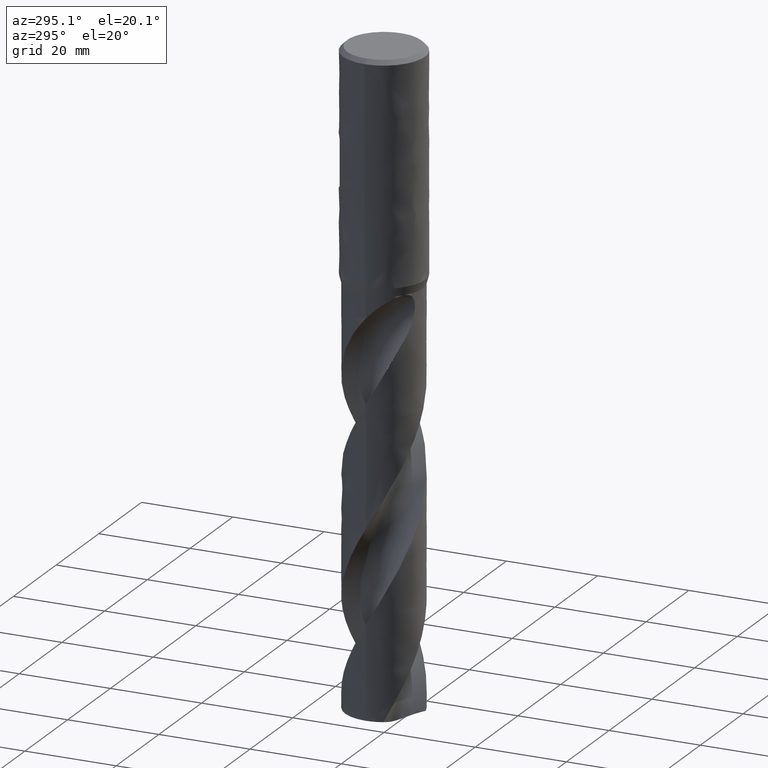
[diagram: clean part render]
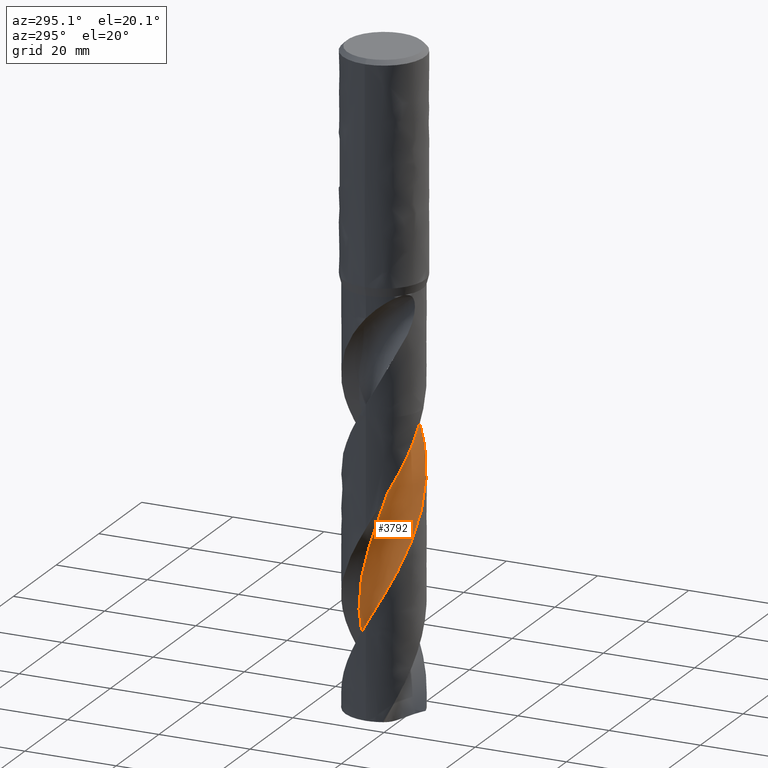
[diagram: same view with one face highlighted and labeled with its STEP entity id]
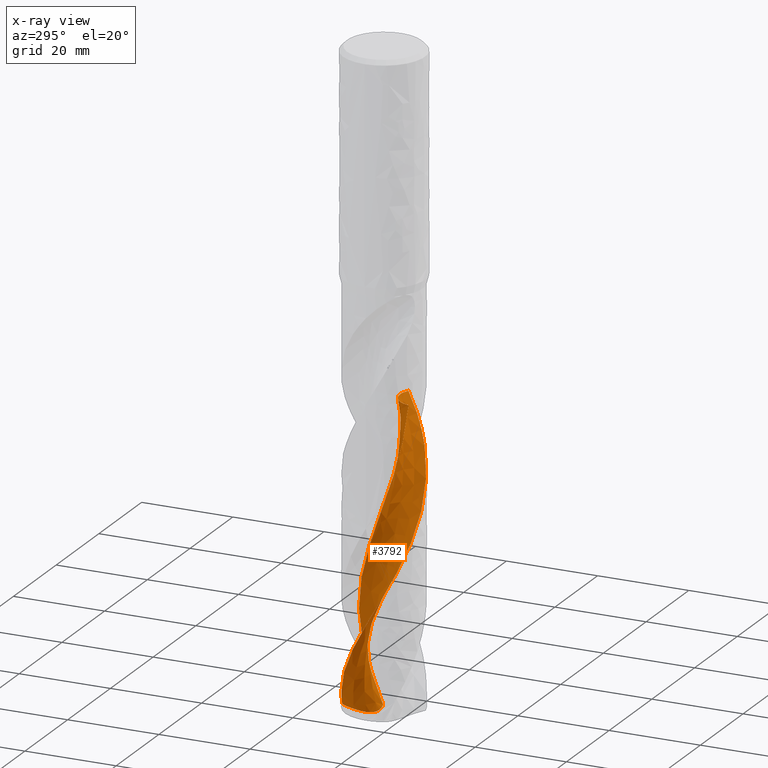
[diagram: x-ray of the same camera — body ghosted, the highlighted face saturated]
A machine part, auxiliary view. The second image highlights one B-rep face of the part: STEP entity #3792.
The next image is the same camera in x-ray: the body ghosted, the highlighted face saturated — about 0% of this face is hidden behind the body in this view.
In plain terms, the highlighted face is a freeform B-spline surface patch.
Its self-contained STEP definition (entity closure, byte-faithful):
#2079 = VERTEX_POINT('', #2080);
#2080 = CARTESIAN_POINT('', (0.872850552321032, -5.01350328899463, -75.5));
#2086 = EDGE_CURVE('', #2079, #2087, #2089, .T.);
#2087 = VERTEX_POINT('', #2088);
#2088 = CARTESIAN_POINT('', (8.38002394028895, -1.42309478257214, -75.5));
#2089 = B_SPLINE_CURVE_WITH_KNOTS('', 3, (#2090, #2091, #2092, #2093, #2094, #2095, #2096, #2097, #2098, #2099, #2100, #2101, #2102, #2103, #2104, #2105, #2106, #2107, #2108, #2109, #2110, #2111, #2112, #2113, #2114, #2115, #2116, #2117, #2118, #2119, #2120, #2121, #2122, #2123, #2124, #2125, #2126, #2127, #2128, #2129, #2130, #2131, #2132, #2133, #2134, #2135, #2136, #2137, #2138, #2139, #2140, #2141, #2142, #2143, #2144, #2145, #2146, #2147, #2148, #2149, #2150, #2151, #2152, #2153, #2154, #2155, #2156, #2157, #2158, #2159), .UNSPECIFIED., .F., .U., (4, 3, 3, 3, 3, 3, 3, 3, 3, 3, 3, 3, 3, 3, 3, 3, 3, 3, 3, 3, 3, 3, 3, 4), (0., 0.445744900889594, 0.891040488506036, 1.33589669995762, 1.78032151113903, 2.2243210726991, 2.66789981311372, 3.11106051258181, 3.55380435036379, 3.99613092724309, 4.43803826395497, 4.87952277564306, 4.9184426101405, 5.36416289379438, 5.80943445514963, 6.25426712103822, 6.69866876536011, 7.14264544315397, 7.58620149200566, 8.0293396044483, 8.47206087391858, 8.91436481590264, 9.35624936507221, 9.72942490357285), .UNSPECIFIED.);
#2090 = CARTESIAN_POINT('', (0.872850552321035, -5.01350328899463, -75.5));
#2091 = CARTESIAN_POINT('', (0.898069629858211, -4.8670775399602, -75.5));
#2092 = CARTESIAN_POINT('', (0.929723618012922, -4.72161633555014, -75.5));
#2093 = CARTESIAN_POINT('', (0.967631437455532, -4.57795179894759, -75.5));
#2094 = CARTESIAN_POINT('', (1.00550104561093, -4.43443207697567, -75.5));
#2095 = CARTESIAN_POINT('', (1.04968396228272, -4.29243213816947, -75.5));
#2096 = CARTESIAN_POINT('', (1.09992794390837, -4.1527626707575, -75.5));
#2097 = CARTESIAN_POINT('', (1.15012234945788, -4.01323101615268, -75.5));
#2098 = CARTESIAN_POINT('', (1.20646122163639, -3.87576008925084, -75.5));
#2099 = CARTESIAN_POINT('', (1.26862355114358, -3.74113317598507, -75.5));
#2100 = CARTESIAN_POINT('', (1.33072559859769, -3.6066368174587, -75.5));
#2101 = CARTESIAN_POINT('', (1.39875756979384, -3.4747238755258, -75.5));
#2102 = CARTESIAN_POINT('', (1.47233258053097, -3.34614451267982, -75.5));
#2103 = CARTESIAN_POINT('', (1.54583719073089, -3.2176881815008, -75.5));
#2104 = CARTESIAN_POINT('', (1.62501335256773, -3.09231588944955, -75.5));
#2105 = CARTESIAN_POINT('', (1.70941166708936, -2.97073924182953, -75.5));
#2106 = CARTESIAN_POINT('', (1.79372998920004, -2.84927782410734, -75.5));
#2107 = CARTESIAN_POINT('', (1.88341985205792, -2.73137537070068, -75.5));
#2108 = CARTESIAN_POINT('', (1.97797314477427, -2.6176998224278, -75.5));
#2109 = CARTESIAN_POINT('', (2.07243732783684, -2.50413140515436, -75.5));
#2110 = CARTESIAN_POINT('', (2.17193389424546, -2.39456775603755, -75.5));
#2111 = CARTESIAN_POINT('', (2.27590023661895, -2.28962840718713, -75.5));
#2112 = CARTESIAN_POINT('', (2.37976878244859, -2.18478777014475, -75.5));
#2113 = CARTESIAN_POINT('', (2.48829418270865, -2.08436539232053, -75.5));
#2114 = CARTESIAN_POINT('', (2.6008639284272, -1.98892804985399, -75.5));
#2115 = CARTESIAN_POINT('', (2.71332758355858, -1.89358065165831, -75.5));
#2116 = CARTESIAN_POINT('', (2.83003922916998, -1.80302975581234, -75.5));
#2117 = CARTESIAN_POINT('', (2.95034139301739, -1.71778546308945, -75.5));
#2118 = CARTESIAN_POINT('', (3.07052953364769, -1.63262196549266, -75.5));
#2119 = CARTESIAN_POINT('', (3.19452674055901, -1.55259530827691, -75.5));
#2120 = CARTESIAN_POINT('', (3.32163582134724, -1.47815545300931, -75.5));
#2121 = CARTESIAN_POINT('', (3.44862328184169, -1.403786823157, -75.5));
#2122 = CARTESIAN_POINT('', (3.57895431235261, -1.33485510696751, -75.5));
#2123 = CARTESIAN_POINT('', (3.71189750731392, -1.27174714279167, -75.5));
#2124 = CARTESIAN_POINT('', (3.72361734574194, -1.26618375051817, -75.5));
#2125 = CARTESIAN_POINT('', (3.7353584970808, -1.26066503579943, -75.5));
#2126 = CARTESIAN_POINT('', (3.74712044854346, -1.25519123966168, -75.5));
#2127 = CARTESIAN_POINT('', (3.88182144123665, -1.19250387218739, -75.5));
#2128 = CARTESIAN_POINT('', (4.01939529662581, -1.13565394496767, -75.5));
#2129 = CARTESIAN_POINT('', (4.15905509857951, -1.08496663697403, -75.5));
#2130 = CARTESIAN_POINT('', (4.29857430009464, -1.0343303576775, -75.5));
#2131 = CARTESIAN_POINT('', (4.44044085410922, -0.989747872403969, -75.5));
#2132 = CARTESIAN_POINT('', (4.58384492117184, -0.951473678456662, -75.5));
#2133 = CARTESIAN_POINT('', (4.72710763765113, -0.913237210633526, -75.5));
#2134 = CARTESIAN_POINT('', (4.87217703101989, -0.881223931458957, -75.5));
#2135 = CARTESIAN_POINT('', (5.0182266079494, -0.855616227865535, -75.5));
#2136 = CARTESIAN_POINT('', (5.16413466982776, -0.830033336911491, -75.5));
#2137 = CARTESIAN_POINT('', (5.31129769982746, -0.810795077570687, -75.5));
#2138 = CARTESIAN_POINT('', (5.45887889838085, -0.798010842583263, -75.5));
#2139 = CARTESIAN_POINT('', (5.60631896993717, -0.785238832735024, -75.5));
#2140 = CARTESIAN_POINT('', (5.75445546559087, -0.778884312963161, -75.5));
#2141 = CARTESIAN_POINT('', (5.90244765838588, -0.778983347412716, -75.5));
#2142 = CARTESIAN_POINT('', (6.05029964156489, -0.77908228803582, -75.5));
#2143 = CARTESIAN_POINT('', (6.19828690128855, -0.785622724138457, -75.5));
#2144 = CARTESIAN_POINT('', (6.34557114598678, -0.798567606636392, -75.5));
#2145 = CARTESIAN_POINT('', (6.49271661352596, -0.811500291943643, -75.5));
#2146 = CARTESIAN_POINT('', (6.63943784009502, -0.830849722511652, -75.5));
#2147 = CARTESIAN_POINT('', (6.784905269, -0.856506497335366, -75.5));
#2148 = CARTESIAN_POINT('', (6.93023586229157, -0.882139137818164, -75.5));
#2149 = CARTESIAN_POINT('', (7.07458853063715, -0.914115480013868, -75.5));
#2150 = CARTESIAN_POINT('', (7.21714864167149, -0.952255070290592, -75.5));
#2151 = CARTESIAN_POINT('', (7.35957436961452, -0.990358708602878, -75.5));
#2152 = CARTESIAN_POINT('', (7.50047846402352, -1.03468553495104, -75.5));
#2153 = CARTESIAN_POINT('', (7.63906725034292, -1.08498586834213, -75.5));
#2154 = CARTESIAN_POINT('', (7.77752462670722, -1.13523850693246, -75.5));
#2155 = CARTESIAN_POINT('', (7.91393068550295, -1.19154752717377, -75.5));
#2156 = CARTESIAN_POINT('', (8.04751854272988, -1.25359635598218, -75.5));
#2157 = CARTESIAN_POINT('', (8.16033470851683, -1.30599715874259, -75.5));
#2158 = CARTESIAN_POINT('', (8.27134178443179, -1.36258428438345, -75.5));
#2159 = CARTESIAN_POINT('', (8.38002394028895, -1.42309478257214, -75.5));
#3593 = EDGE_CURVE('', #2087, #3594, #3596, .T.);
#3594 = VERTEX_POINT('', #3595);
#3595 = CARTESIAN_POINT('', (7.66228628523739, -3.67958814041233, -79.6218993822655));
#3596 = B_SPLINE_CURVE_WITH_KNOTS('', 3, (#3597, #3598, #3599, #3600, #3601, #3602, #3603, #3604, #3605, #3606, #3607, #3608, #3609, #3610, #3611, #3612, #3613, #3614, #3615), .UNSPECIFIED., .F., .U., (4, 3, 3, 3, 3, 3, 4), (10.2474994781111, 10.5613982733317, 11.5600384179919, 12.5585649459374, 13.5569745466058, 14.5552683817902, 15.0048238503907), .UNSPECIFIED.);
#3597 = CARTESIAN_POINT('', (8.38002394028895, -1.42309478257214, -75.5));
#3598 = CARTESIAN_POINT('', (8.37127325206065, -1.47462401150701, -75.5906433363544));
#3599 = CARTESIAN_POINT('', (8.36204691657744, -1.52607428736887, -75.6812953141512));
#3600 = CARTESIAN_POINT('', (8.35234805435497, -1.57742891405998, -75.7719412450778));
#3601 = CARTESIAN_POINT('', (8.32149201629314, -1.7408089352918, -76.0603229367304));
#3602 = CARTESIAN_POINT('', (8.28584113308772, -1.90327921638246, -76.3487482090748));
#3603 = CARTESIAN_POINT('', (8.2454641020793, -2.06453911111448, -76.6371473564746));
#3604 = CARTESIAN_POINT('', (8.20509166482333, -2.2257806590781, -76.9255136922918));
#3605 = CARTESIAN_POINT('', (8.15998435005145, -2.3858499380623, -77.2139137883939));
#3606 = CARTESIAN_POINT('', (8.11023129323462, -2.544434784041, -77.5022874939838));
#3607 = CARTESIAN_POINT('', (8.0604840624918, -2.7030010597627, -77.7906274310644));
#3608 = CARTESIAN_POINT('', (8.00608178647481, -2.86011634898766, -78.0790033182412));
#3609 = CARTESIAN_POINT('', (7.94713249805512, -3.01547426756655, -78.3673553055903));
#3610 = CARTESIAN_POINT('', (7.88819004479897, -3.1708141724118, -78.655673858558));
#3611 = CARTESIAN_POINT('', (7.8246890375392, -3.32443047425926, -78.944030228667));
#3612 = CARTESIAN_POINT('', (7.75675439880873, -3.47602663921917, -79.2323629781919));
#3613 = CARTESIAN_POINT('', (7.72616181446903, -3.54429399956403, -79.3622060762429));
#3614 = CARTESIAN_POINT('', (7.69466829074476, -3.61215662709632, -79.4920534522267));
#3615 = CARTESIAN_POINT('', (7.66228628523731, -3.67958814041248, -79.6218993822658));
#3792 = ADVANCED_FACE('', (#3793), #4038, .T.);
#3793 = FACE_OUTER_BOUND('', #3794, .T.);
#3794 = EDGE_LOOP('', (#3795, #3796, #3846, #3978, #3993, #4037));
#3795 = ORIENTED_EDGE('', *, *, #2086, .F.);
#3796 = ORIENTED_EDGE('', *, *, #3797, .F.);
#3797 = EDGE_CURVE('', #3798, #2079, #3800, .T.);
#3798 = VERTEX_POINT('', #3799);
#3799 = CARTESIAN_POINT('', (4.53570684960779, 2.30879701014691, -141.147567413682));
#3800 = B_SPLINE_CURVE_WITH_KNOTS('', 3, (#3801, #3802, #3803, #3804, #3805, #3806, #3807, #3808, #3809, #3810, #3811, #3812, #3813, #3814, #3815, #3816, #3817, #3818, #3819, #3820, #3821, #3822, #3823, #3824, #3825, #3826, #3827, #3828, #3829, #3830, #3831, #3832, #3833, #3834, #3835, #3836, #3837, #3838, #3839, #3840, #3841, #3842, #3843, #3844, #3845), .UNSPECIFIED., .F., .U., (4, 1, 1, 1, 1, 1, 1, 1, 1, 1, 1, 1, 1, 1, 1, 1, 1, 1, 1, 1, 1, 1, 1, 1, 1, 1, 1, 1, 1, 1, 1, 1, 1, 1, 1, 1, 1, 1, 1, 1, 1, 1, 4), (1.90243258631817, 3.15491525423729, 4.73237288135593, 6.30983050847458, 7.88728813559322, 9.46474576271186, 11.0422033898305, 12.6196610169492, 14.1971186440678, 15.7745762711864, 17.3520338983051, 18.9294915254237, 20.5069491525424, 22.084406779661, 23.6618644067797, 25.2393220338983, 26.8167796610169, 28.3942372881356, 29.9716949152542, 31.5491525423729, 33.1266101694915, 34.7040677966102, 36.2815254237288, 37.8589830508475, 39.4364406779661, 41.0138983050847, 42.5913559322034, 44.168813559322, 45.7462711864407, 47.3237288135593, 48.901186440678, 50.4786440677966, 52.0561016949152, 53.6335593220339, 55.2110169491525, 56.7884745762712, 58.3659322033898, 59.9433898305085, 61.5208474576271, 63.0983050847458, 64.6757627118644, 66.2532203389831, 67.55), .UNSPECIFIED.);
#3801 = CARTESIAN_POINT('', (4.53570684960778, 2.30879701014692, -141.147567413682));
#3802 = CARTESIAN_POINT('', (4.46769455850518, 2.43448795774081, -140.730073191042));
#3803 = CARTESIAN_POINT('', (4.30237233456855, 2.71178721590451, -139.786759759363));
#3804 = CARTESIAN_POINT('', (4.00596020398452, 3.11678888446556, -138.317627118644));
#3805 = CARTESIAN_POINT('', (3.64480641942108, 3.514953969856, -136.740169491525));
#3806 = CARTESIAN_POINT('', (3.24488716198237, 3.87227467584015, -135.162711864407));
#3807 = CARTESIAN_POINT('', (2.81072271988332, 4.18506552300946, -133.585254237288));
#3808 = CARTESIAN_POINT('', (2.34717185167911, 4.45012879469237, -132.00779661017));
#3809 = CARTESIAN_POINT('', (1.85938322845106, 4.66478712323646, -130.430338983051));
#3810 = CARTESIAN_POINT('', (1.35274002243834, 4.82690804329075, -128.852881355932));
#3811 = CARTESIAN_POINT('', (0.832803573453643, 4.93492366122554, -127.275423728814));
#3812 = CARTESIAN_POINT('', (0.30525524990833, 4.98784438623364, -125.697966101695));
#3813 = CARTESIAN_POINT('', (-0.224162538920032, 4.98526686384074, -124.120508474576));
#3814 = CARTESIAN_POINT('', (-0.749705708322296, 4.92737600175594, -122.543050847458));
#3815 = CARTESIAN_POINT('', (-1.26568763918169, 4.81494111468747, -120.965593220339));
#3816 = CARTESIAN_POINT('', (-1.76653753302831, 4.6493062470862, -119.38813559322));
#3817 = CARTESIAN_POINT('', (-2.2468574204104, 4.43237479199793, -117.810677966102));
#3818 = CARTESIAN_POINT('', (-2.70147727947187, 4.16658857459936, -116.233220338983));
#3819 = CARTESIAN_POINT('', (-3.12550774066004, 3.8549016196097, -114.655762711864));
#3820 = CARTESIAN_POINT('', (-3.51438987782229, 3.50074886968906, -113.078305084746));
#3821 = CARTESIAN_POINT('', (-3.86394161427363, 3.10801016746339, -111.500847457627));
#3822 = CARTESIAN_POINT('', (-4.17040030476967, 2.68096985642617, -109.923389830508));
#3823 = CARTESIAN_POINT('', (-4.43046109034622, 2.22427239538146, -108.34593220339));
#3824 = CARTESIAN_POINT('', (-4.64131066240843, 1.74287441699916, -106.768474576271));
#3825 = CARTESIAN_POINT('', (-4.80065611493931, 1.24199369317963, -105.191016949153));
#3826 = CARTESIAN_POINT('', (-4.90674860891064, 0.727055498024628, -103.613559322034));
#3827 = CARTESIAN_POINT('', (-4.95840162055451, 0.203636883064418, -102.036101694915));
#3828 = CARTESIAN_POINT('', (-4.95500359471716, -0.322590601188567, -100.458644067797));
#3829 = CARTESIAN_POINT('', (-4.89652487567367, -0.845919188464454, -98.881186440678));
#3830 = CARTESIAN_POINT('', (-4.78351884013571, -1.36066362573158, -97.3037288135593));
#3831 = CARTESIAN_POINT('', (-4.61711721030527, -1.86121978367811, -95.7262711864407));
#3832 = CARTESIAN_POINT('', (-4.39901957835177, -2.34212258391505, -94.148813559322));
#3833 = CARTESIAN_POINT('', (-4.13147722698303, -2.79810268284054, -92.5713559322034));
#3834 = CARTESIAN_POINT('', (-3.81727138419375, -3.22414136065348, -90.9938983050847));
#3835 = CARTESIAN_POINT('', (-3.45968610046548, -3.61552308131949, -89.4164406779661));
#3836 = CARTESIAN_POINT('', (-3.06247599411053, -3.96788519677605, -87.8389830508475));
#3837 = CARTESIAN_POINT('', (-2.62982913407136, -4.27726433531227, -86.2615254237288));
#3838 = CARTESIAN_POINT('', (-2.16632547043543, -4.54013888181021, -84.6840677966102));
#3839 = CARTESIAN_POINT('', (-1.67689091522493, -4.75346758874833, -83.1066101694915));
#3840 = CARTESIAN_POINT('', (-1.16674853002574, -4.91472215906032, -81.5291525423729));
#3841 = CARTESIAN_POINT('', (-0.641363414935185, -5.02192002137347, -79.9516949152542));
#3842 = CARTESIAN_POINT('', (-0.106396213709954, -5.07363244073825, -78.3742372881356));
#3843 = CARTESIAN_POINT('', (0.400432664223965, -5.06933053580082, -76.8903389830508));
#3844 = CARTESIAN_POINT('', (0.726494927196873, -5.03520302541645, -75.9322598870056));
#3845 = CARTESIAN_POINT('', (0.872850552321032, -5.01350328899463, -75.5));
#3846 = ORIENTED_EDGE('', *, *, #3847, .T.);
#3847 = EDGE_CURVE('', #3798, #3848, #3850, .T.);
#3848 = VERTEX_POINT('', #3849);
#3849 = CARTESIAN_POINT('', (-1.79707787231548, 8.30785839556948, -139.906253008737));
#3850 = B_SPLINE_CURVE_WITH_KNOTS('', 3, (#3851, #3852, #3853, #3854, #3855, #3856, #3857, #3858, #3859, #3860, #3861, #3862, #3863, #3864, #3865, #3866, #3867, #3868, #3869, #3870, #3871, #3872, #3873, #3874, #3875, #3876, #3877, #3878, #3879, #3880, #3881, #3882, #3883, #3884, #3885, #3886, #3887, #3888, #3889, #3890, #3891, #3892, #3893, #3894, #3895, #3896, #3897, #3898, #3899, #3900, #3901, #3902, #3903, #3904, #3905, #3906, #3907, #3908, #3909, #3910, #3911, #3912, #3913, #3914, #3915, #3916, #3917, #3918, #3919, #3920, #3921, #3922, #3923, #3924, #3925, #3926, #3927, #3928, #3929, #3930, #3931, #3932, #3933, #3934, #3935, #3936, #3937, #3938, #3939, #3940, #3941, #3942, #3943, #3944, #3945, #3946, #3947, #3948, #3949, #3950, #3951, #3952, #3953, #3954, #3955, #3956, #3957, #3958, #3959, #3960, #3961, #3962, #3963, #3964, #3965, #3966, #3967, #3968, #3969, #3970, #3971, #3972, #3973, #3974, #3975, #3976, #3977), .UNSPECIFIED., .F., .U., (4, 3, 3, 3, 3, 3, 3, 3, 3, 3, 3, 3, 3, 3, 3, 3, 3, 3, 3, 3, 3, 3, 3, 3, 3, 3, 3, 3, 3, 3, 3, 3, 3, 3, 3, 3, 3, 3, 3, 3, 3, 3, 4), (0., 0.295916679718215, 0.591608683672163, 0.887002691172068, 1.18202289433323, 1.37863456013211, 1.57511120186678, 1.7714554439009, 1.96768048055764, 2.1638119717285, 2.35988825339568, 2.55595795627859, 2.7520746565261, 2.9482892231089, 3.14464168902741, 3.34115505011474, 3.53783285834705, 3.73466101338344, 3.93161261929503, 4.12865399847076, 4.32575014470439, 4.5228686500086, 4.71998191464515, 4.91706793838596, 4.97546713086478, 5.27267199030557, 5.33113109407945, 5.6291105133881, 5.92652115712433, 6.22345065858934, 6.51997348384916, 6.81615108101143, 7.11203326621746, 7.40765997182653, 7.70306295076987, 7.99826727562737, 8.29329258976878, 8.58815412057859, 8.8828634845381, 9.17742931823765, 9.47185776708287, 9.76615285883323, 10.1427620215063), .UNSPECIFIED.);
#3851 = CARTESIAN_POINT('', (4.53570684960779, 2.30879701014691, -141.147567413682));
#3852 = CARTESIAN_POINT('', (4.44542956267737, 2.28657505388774, -141.18051930868));
#3853 = CARTESIAN_POINT('', (4.35415428238772, 2.26770787964046, -141.213195451677));
#3854 = CARTESIAN_POINT('', (4.26219522834909, 2.25234542986744, -141.245400401247));
#3855 = CARTESIAN_POINT('', (4.17030599454083, 2.23699464408762, -141.277580899097));
#3856 = CARTESIAN_POINT('', (4.07761194735069, 2.22512341661962, -141.309334007058));
#3857 = CARTESIAN_POINT('', (3.9844475452985, 2.21685464190696, -141.340428764025));
#3858 = CARTESIAN_POINT('', (3.89137703371708, 2.208594200411, -141.3714921839));
#3859 = CARTESIAN_POINT('', (3.79770705067758, 2.20391810298251, -141.401942229109));
#3860 = CARTESIAN_POINT('', (3.70379131545322, 2.20291469943141, -141.431507731518));
#3861 = CARTESIAN_POINT('', (3.60999442525757, 2.20191256563052, -141.461035820463));
#3862 = CARTESIAN_POINT('', (3.5158144070277, 2.20457324864503, -141.48972501681));
#3863 = CARTESIAN_POINT('', (3.42162334668422, 2.21094075197309, -141.517261682766));
#3864 = CARTESIAN_POINT('', (3.35885116674854, 2.21518427639242, -141.535613069234));
#3865 = CARTESIAN_POINT('', (3.29602069461687, 2.22107620067469, -141.553467540107));
#3866 = CARTESIAN_POINT('', (3.23324678964248, 2.2286158259872, -141.570722057287));
#3867 = CARTESIAN_POINT('', (3.17051599496748, 2.23615027342358, -141.587964724839));
#3868 = CARTESIAN_POINT('', (3.10779687098914, 2.2453357074161, -141.604620433798));
#3869 = CARTESIAN_POINT('', (3.04520768556438, 2.25615812259525, -141.620579734553));
#3870 = CARTESIAN_POINT('', (2.98266067710954, 2.26697324487427, -141.636528280815));
#3871 = CARTESIAN_POINT('', (2.92019721395766, 2.27943130735249, -141.651792901343));
#3872 = CARTESIAN_POINT('', (2.85793861156301, 2.29350279926752, -141.666260479149));
#3873 = CARTESIAN_POINT('', (2.7957178078841, 2.30756574803666, -141.680719273337));
#3874 = CARTESIAN_POINT('', (2.73365420092952, 2.32325104687815, -141.694392667414));
#3875 = CARTESIAN_POINT('', (2.67187140605575, 2.34051155853748, -141.707168138549));
#3876 = CARTESIAN_POINT('', (2.61011806461802, 2.35776384167014, -141.719937519291));
#3877 = CARTESIAN_POINT('', (2.54859698847132, 2.37660344758162, -141.731819381547));
#3878 = CARTESIAN_POINT('', (2.48743271693685, 2.39696398874522, -141.742707622347));
#3879 = CARTESIAN_POINT('', (2.42628566267359, 2.41731879857335, -141.753592798192));
#3880 = CARTESIAN_POINT('', (2.36544657201471, 2.43920992755368, -141.763493086825));
#3881 = CARTESIAN_POINT('', (2.30503869054665, 2.4625511869539, -141.772315844191));
#3882 = CARTESIAN_POINT('', (2.24463283589396, 2.48589166320427, -141.781138305534));
#3883 = CARTESIAN_POINT('', (2.18460985001403, 2.51070077821621, -141.788889906805));
#3884 = CARTESIAN_POINT('', (2.12508857052017, 2.53687366827216, -141.795498843603));
#3885 = CARTESIAN_POINT('', (2.06555302394052, 2.56305283189734, -141.802109364545));
#3886 = CARTESIAN_POINT('', (2.00647229624075, 2.59061695466142, -141.80758157166));
#3887 = CARTESIAN_POINT('', (1.94795704778077, 2.61944569557028, -141.811870895272));
#3888 = CARTESIAN_POINT('', (1.88941259898794, 2.64828882262382, -141.816162359347));
#3889 = CARTESIAN_POINT('', (1.83138919600261, 2.67841968009376, -141.819272932421));
#3890 = CARTESIAN_POINT('', (1.7739854808425, 2.70970763874858, -141.821189245448));
#3891 = CARTESIAN_POINT('', (1.71654142242793, 2.74101758653902, -141.823106905257));
#3892 = CARTESIAN_POINT('', (1.65967597642132, 2.77350871554218, -141.823830152225));
#3893 = CARTESIAN_POINT('', (1.60347264399474, 2.80704661159617, -141.823377328487));
#3894 = CARTESIAN_POINT('', (1.54722325742456, 2.84061198927828, -141.822924133695));
#3895 = CARTESIAN_POINT('', (1.49159893567305, 2.87524816192953, -141.821292988134));
#3896 = CARTESIAN_POINT('', (1.43666633937394, 2.91082362943316, -141.818530845901));
#3897 = CARTESIAN_POINT('', (1.38168777414643, 2.94642886735052, -141.815766392239));
#3898 = CARTESIAN_POINT('', (1.32736826098748, 2.98299646490774, -141.811867854629));
#3899 = CARTESIAN_POINT('', (1.27375766787031, 3.02040356439516, -141.806904889866));
#3900 = CARTESIAN_POINT('', (1.22010609310192, 3.05783925906526, -141.801938131254));
#3901 = CARTESIAN_POINT('', (1.16713515957268, 3.09613588090467, -141.795903158589));
#3902 = CARTESIAN_POINT('', (1.11487957375669, 3.13518317007169, -141.788885013435));
#3903 = CARTESIAN_POINT('', (1.06259121316921, 3.17425494974933, -141.781862466491));
#3904 = CARTESIAN_POINT('', (1.01099406146357, 3.2140967920812, -141.7738526733));
#3905 = CARTESIAN_POINT('', (0.960110350773256, 3.25461297957542, -141.764948779601));
#3906 = CARTESIAN_POINT('', (0.90920344658432, 3.2951476349079, -141.756040827384));
#3907 = CARTESIAN_POINT('', (0.858989547403153, 3.33637387728039, -141.746234698878));
#3908 = CARTESIAN_POINT('', (0.809481515083669, 3.37821071959382, -141.735625450516));
#3909 = CARTESIAN_POINT('', (0.75995972215571, 3.42005919033156, -141.725013253345));
#3910 = CARTESIAN_POINT('', (0.711126538139615, 3.4625334297333, -141.713594022803));
#3911 = CARTESIAN_POINT('', (0.662988443074837, 3.50556613037229, -141.701460116345));
#3912 = CARTESIAN_POINT('', (0.614844887106404, 3.54860371274646, -141.689324833387));
#3913 = CARTESIAN_POINT('', (0.567381804650243, 3.59221306017586, -141.676471195284));
#3914 = CARTESIAN_POINT('', (0.520601841551766, 3.63633880629875, -141.662985864291));
#3915 = CARTESIAN_POINT('', (0.473823122163208, 3.68046337927773, -141.649500891825));
#3916 = CARTESIAN_POINT('', (0.427715053289273, 3.72511605916673, -141.635380793408));
#3917 = CARTESIAN_POINT('', (0.382278428048083, 3.77025143781089, -141.620704905292));
#3918 = CARTESIAN_POINT('', (0.336848082112211, 3.81538057878176, -141.606031045373));
#3919 = CARTESIAN_POINT('', (0.292078426994615, 3.86100281316614, -141.590798187262));
#3920 = CARTESIAN_POINT('', (0.247969831869422, 3.9070807559298, -141.575077726445));
#3921 = CARTESIAN_POINT('', (0.23489987242839, 3.92073425909257, -141.570419546226));
#3922 = CARTESIAN_POINT('', (0.221887422642546, 3.93442836836892, -141.565718316823));
#3923 = CARTESIAN_POINT('', (0.20893249861827, 3.94816222257016, -141.560975762273));
#3924 = CARTESIAN_POINT('', (0.143002368247076, 4.01805648025084, -141.536839978908));
#3925 = CARTESIAN_POINT('', (0.0785448860230586, 4.08899643769119, -141.51163047974));
#3926 = CARTESIAN_POINT('', (0.0155651652342187, 4.16088488647693, -141.485551156768));
#3927 = CARTESIAN_POINT('', (0.00317728557379773, 4.17502508019925, -141.480421449768));
#3928 = CARTESIAN_POINT('', (-0.00915400446454976, 4.18920271257747, -141.475257735061));
#3929 = CARTESIAN_POINT('', (-0.0214286347731398, 4.2034171439441, -141.470061397254));
#3930 = CARTESIAN_POINT('', (-0.0839952321970334, 4.27587135091951, -141.443574475247));
#3931 = CARTESIAN_POINT('', (-0.145104151036754, 4.34929685543908, -141.416236441406));
#3932 = CARTESIAN_POINT('', (-0.204741161813181, 4.42361873431761, -141.388210854442));
#3933 = CARTESIAN_POINT('', (-0.264264338973111, 4.49779874947516, -141.360238762009));
#3934 = CARTESIAN_POINT('', (-0.322342077777431, 4.57289804013423, -141.331571573282));
#3935 = CARTESIAN_POINT('', (-0.378951430284625, 4.64885342583673, -141.30234347354));
#3936 = CARTESIAN_POINT('', (-0.435469201831247, 4.72468593313002, -141.273162658165));
#3937 = CARTESIAN_POINT('', (-0.4905417708335, 4.80139678514119, -141.243412876898));
#3938 = CARTESIAN_POINT('', (-0.544137568647155, 4.87892948794624, -141.213204962349));
#3939 = CARTESIAN_POINT('', (-0.597659961374544, 4.95635600155419, -141.183038420719));
#3940 = CARTESIAN_POINT('', (-0.64972635647599, 5.03462655677956, -141.152405262989));
#3941 = CARTESIAN_POINT('', (-0.700297089196664, 5.11368783814942, -141.121398061455));
#3942 = CARTESIAN_POINT('', (-0.750808944703306, 5.19265707204965, -141.090426960203));
#3943 = CARTESIAN_POINT('', (-0.799844105084224, 5.27243960639676, -141.059072931143));
#3944 = CARTESIAN_POINT('', (-0.847355456626904, 5.35298280645413, -141.027414425786));
#3945 = CARTESIAN_POINT('', (-0.894819419638386, 5.43344567152154, -140.995787497095));
#3946 = CARTESIAN_POINT('', (-0.940777147854681, 5.51469250655703, -140.963846798283));
#3947 = CARTESIAN_POINT('', (-0.985174711475082, 5.59666949798387, -140.931659964341));
#3948 = CARTESIAN_POINT('', (-1.02953394000055, 5.67857570634307, -140.899500922134));
#3949 = CARTESIAN_POINT('', (-1.07234946275647, 5.7612363934307, -140.867086010866));
#3950 = CARTESIAN_POINT('', (-1.11356110407837, 5.84459509599231, -140.834474671648));
#3951 = CARTESIAN_POINT('', (-1.15474155693547, 5.92789071370999, -140.801888012291));
#3952 = CARTESIAN_POINT('', (-1.19433365176424, 6.01190994232849, -140.769094707096));
#3953 = CARTESIAN_POINT('', (-1.23227147086584, 6.09659242169518, -140.736148090174));
#3954 = CARTESIAN_POINT('', (-1.27018377735142, 6.18121795336086, -140.703223629359));
#3955 = CARTESIAN_POINT('', (-1.30645650145276, 6.26653384303225, -140.670135102077));
#3956 = CARTESIAN_POINT('', (-1.34101843886058, 6.35247470077252, -140.63693141002));
#3957 = CARTESIAN_POINT('', (-1.37555941804847, 6.43836344432207, -140.603747852549));
#3958 = CARTESIAN_POINT('', (-1.40840351948011, 6.52490600870027, -140.570437779202));
#3959 = CARTESIAN_POINT('', (-1.43947468776576, 6.61203088302492, -140.537047020398));
#3960 = CARTESIAN_POINT('', (-1.47052860688933, 6.69910738996718, -140.503674798476));
#3961 = CARTESIAN_POINT('', (-1.49982271185954, 6.78679704108404, -140.4702098788));
#3962 = CARTESIAN_POINT('', (-1.52727654589325, 6.87502110693962, -140.436696145034));
#3963 = CARTESIAN_POINT('', (-1.55471621204468, 6.96319964370164, -140.403199706435));
#3964 = CARTESIAN_POINT('', (-1.58032788368811, 7.05194565378607, -140.369641710828));
#3965 = CARTESIAN_POINT('', (-1.60402720420693, 7.14117205405288, -140.33606504147));
#3966 = CARTESIAN_POINT('', (-1.62771498260984, 7.23035499900408, -140.302504724725));
#3967 = CARTESIAN_POINT('', (-1.64950174499761, 7.32005386936781, -140.268912187246));
#3968 = CARTESIAN_POINT('', (-1.66929982937805, 7.41017203755071, -140.235330123668));
#3969 = CARTESIAN_POINT('', (-1.68908867997565, 7.50024817481898, -140.201763722691));
#3970 = CARTESIAN_POINT('', (-1.70689910005958, 7.59078188405692, -140.168193367752));
#3971 = CARTESIAN_POINT('', (-1.72264085413957, 7.68166574015948, -140.134662273733));
#3972 = CARTESIAN_POINT('', (-1.73837547822041, 7.77250843173779, -140.101146367136));
#3973 = CARTESIAN_POINT('', (-1.75205039918567, 7.86374255416121, -140.067654333447));
#3974 = CARTESIAN_POINT('', (-1.7635737255322, 7.95524857408812, -140.034230535485));
#3975 = CARTESIAN_POINT('', (-1.77832011583306, 8.07234874500587, -139.991458131471));
#3976 = CARTESIAN_POINT('', (-1.78955277178161, 8.18997981841613, -139.948766518488));
#3977 = CARTESIAN_POINT('', (-1.79707787231548, 8.30785839556947, -139.906253008737));
#3978 = ORIENTED_EDGE('', *, *, #3979, .F.);
#3979 = EDGE_CURVE('', #3980, #3848, #3982, .T.);
#3980 = VERTEX_POINT('', #3981);
#3981 = CARTESIAN_POINT('', (-3.38555226432712, 7.79666825416534, -136.957142303032));
#3982 = B_SPLINE_CURVE_WITH_KNOTS('', 3, (#3983, #3984, #3985, #3986, #3987, #3988, #3989, #3990, #3991, #3992), .UNSPECIFIED., .F., .U., (4, 3, 3, 4), (0., 1.49466570219961, 2.98898307008543, 3.38957992876403), .UNSPECIFIED.);
#3983 = CARTESIAN_POINT('', (-3.38555226432709, 7.79666825416535, -136.957142303032));
#3984 = CARTESIAN_POINT('', (-3.16016999603241, 7.89453614130504, -137.390558698863));
#3985 = CARTESIAN_POINT('', (-2.93051392232226, 7.98263349590562, -137.824089577375));
#3986 = CARTESIAN_POINT('', (-2.69755215824661, 8.06059627779097, -138.257535864116));
#3987 = CARTESIAN_POINT('', (-2.46464468629535, 8.13854089032106, -138.690881135484));
#3988 = CARTESIAN_POINT('', (-2.22832551708452, 8.20639155625862, -139.124338783751));
#3989 = CARTESIAN_POINT('', (-1.98959262177273, 8.26386841614651, -139.557712055426));
#3990 = CARTESIAN_POINT('', (-1.92559306586819, 8.27927682269564, -139.673890837123));
#3991 = CARTESIAN_POINT('', (-1.8614151078441, 8.29394156925524, -139.790072487415));
#3992 = CARTESIAN_POINT('', (-1.79707787231546, 8.30785839556948, -139.906253008737));
#3993 = ORIENTED_EDGE('', *, *, #3994, .T.);
#3994 = EDGE_CURVE('', #3980, #3594, #3995, .T.);
#3995 = B_SPLINE_CURVE_WITH_KNOTS('', 3, (#3996, #3997, #3998, #3999, #4000, #4001, #4002, #4003, #4004, #4005, #4006, #4007, #4008, #4009, #4010, #4011, #4012, #4013, #4014, #4015, #4016, #4017, #4018, #4019, #4020, #4021, #4022, #4023, #4024, #4025, #4026, #4027, #4028, #4029, #4030, #4031, #4032, #4033, #4034, #4035, #4036), .UNSPECIFIED., .F., .U., (4, 1, 1, 1, 1, 1, 1, 1, 1, 1, 1, 1, 1, 1, 1, 1, 1, 1, 1, 1, 1, 1, 1, 1, 1, 1, 1, 1, 1, 1, 1, 1, 1, 1, 1, 1, 1, 1, 4), (6.09285769696826, 6.30983050847458, 7.88728813559322, 9.46474576271186, 11.0422033898305, 12.6196610169492, 14.1971186440678, 15.7745762711864, 17.3520338983051, 18.9294915254237, 20.5069491525424, 22.084406779661, 23.6618644067797, 25.2393220338983, 26.8167796610169, 28.3942372881356, 29.9716949152542, 31.5491525423729, 33.1266101694915, 34.7040677966102, 36.2815254237288, 37.8589830508475, 39.4364406779661, 41.0138983050847, 42.5913559322034, 44.168813559322, 45.7462711864407, 47.3237288135593, 48.901186440678, 50.4786440677966, 52.0561016949152, 53.6335593220339, 55.2110169491525, 56.7884745762712, 58.3659322033898, 59.9433898305085, 61.5208474576271, 63.0983050847458, 63.4281006177345), .UNSPECIFIED.);
#3996 = CARTESIAN_POINT('', (-3.38555226432712, 7.79666825416534, -136.957142303032));
#3997 = CARTESIAN_POINT('', (-3.423103089687, 7.77936863406829, -136.88481803253));
#3998 = CARTESIAN_POINT('', (-3.73257663970286, 7.63407783545368, -136.286674552988));
#3999 = CARTESIAN_POINT('', (-4.29677652657119, 7.32683212357, -135.162711864407));
#4000 = CARTESIAN_POINT('', (-5.03747205764284, 6.81622398191811, -133.585254237288));
#4001 = CARTESIAN_POINT('', (-5.71921081156474, 6.23210588198943, -132.00779661017));
#4002 = CARTESIAN_POINT('', (-6.33484297246908, 5.58111640539164, -130.430338983051));
#4003 = CARTESIAN_POINT('', (-6.87794892732531, 4.87057347111543, -128.852881355932));
#4004 = CARTESIAN_POINT('', (-7.34290225559718, 4.10839625930274, -127.275423728814));
#4005 = CARTESIAN_POINT('', (-7.72492433709176, 3.303020919443, -125.697966101695));
#4006 = CARTESIAN_POINT('', (-8.02013026002336, 2.46331165723501, -124.120508474576));
#4007 = CARTESIAN_POINT('', (-8.22556558872141, 1.59846788373517, -122.543050847458));
#4008 = CARTESIAN_POINT('', (-8.33923369275585, 0.71792839519717, -120.965593220339));
#4009 = CARTESIAN_POINT('', (-8.36011341338206, -0.168726493921979, -119.38813559322));
#4010 = CARTESIAN_POINT('', (-8.28816693744762, -1.05187391017562, -117.810677966102));
#4011 = CARTESIAN_POINT('', (-8.1243378386454, -1.92194751733082, -116.233220338983));
#4012 = CARTESIAN_POINT('', (-7.87053933690343, -2.76953579585484, -114.655762711864));
#4013 = CARTESIAN_POINT('', (-7.52963291632982, -3.58547856341914, -113.078305084746));
#4014 = CARTESIAN_POINT('', (-7.10539753023192, -4.36096081326323, -111.500847457627));
#4015 = CARTESIAN_POINT('', (-6.60248970748361, -5.08760297439737, -109.923389830508));
#4016 = CARTESIAN_POINT('', (-6.02639495728936, -5.75754673238467, -108.34593220339));
#4017 = CARTESIAN_POINT('', (-5.3833709485297, -6.36353559156287, -106.768474576271));
#4018 = CARTESIAN_POINT('', (-4.68038301475998, -6.89898940867636, -105.191016949153));
#4019 = CARTESIAN_POINT('', (-3.92503260598385, -7.35807218359205, -103.613559322034));
#4020 = CARTESIAN_POINT('', (-3.12547937298708, -7.73575245461597, -102.036101694915));
#4021 = CARTESIAN_POINT('', (-2.290357628784, -8.02785571342554, -100.458644067797));
#4022 = CARTESIAN_POINT('', (-1.42868798412227, -8.2311083272505, -98.881186440678));
#4023 = CARTESIAN_POINT('', (-0.549784999598883, -8.34317253311299, -97.3037288135593));
#4024 = CARTESIAN_POINT('', (0.336838264673785, -8.3626721500623, -95.7262711864407));
#4025 = CARTESIAN_POINT('', (1.2215678898953, -8.28920873981681, -94.148813559322));
#4026 = CARTESIAN_POINT('', (2.09478799526282, -8.12336803326578, -92.5713559322034));
#4027 = CARTESIAN_POINT('', (2.94697993921995, -7.866716529689, -90.9938983050847));
#4028 = CARTESIAN_POINT('', (3.76882087301534, -7.52178826480769, -89.4164406779661));
#4029 = CARTESIAN_POINT('', (4.55128067370818, -7.09206183892572, -87.8389830508475));
#4030 = CARTESIAN_POINT('', (5.28571637593316, -6.58192787149371, -86.2615254237288));
#4031 = CARTESIAN_POINT('', (5.9639629326622, -5.99664719683762, -84.6840677966102));
#4032 = CARTESIAN_POINT('', (6.57842030857772, -5.34229998542982, -83.1066101694915));
#4033 = CARTESIAN_POINT('', (7.12213266434326, -4.62572687649061, -81.5291525423729));
#4034 = CARTESIAN_POINT('', (7.46581850004685, -4.05780012742092, -80.3675822799642));
#4035 = CARTESIAN_POINT('', (7.63384002147495, -3.73562359189533, -79.7318312265951));
#4036 = CARTESIAN_POINT('', (7.66228628523739, -3.67958814041233, -79.6218993822655));
#4037 = ORIENTED_EDGE('', *, *, #3593, .F.);
#4038 = (
   BOUNDED_SURFACE ()
   B_SPLINE_SURFACE (3, 2, ((#4039, #4040, #4041, #4042, #4043), (#4044, #4045, #4046, #4047, #4048), (#4049, #4050, #4051, #4052, #4053), (#4054, #4055, #4056, #4057, #4058), (#4059, #4060, #4061, #4062, #4063), (#4064, #4065, #4066, #4067, #4068), (#4069, #4070, #4071, #4072, #4073), (#4074, #4075, #4076, #4077, #4078), (#4079, #4080, #4081, #4082, #4083), (#4084, #4085, #4086, #4087, #4088), (#4089, #4090, #4091, #4092, #4093), (#4094, #4095, #4096, #4097, #4098), (#4099, #4100, #4101, #4102, #4103), (#4104, #4105, #4106, #4107, #4108), (#4109, #4110, #4111, #4112, #4113), (#4114, #4115, #4116, #4117, #4118), (#4119, #4120, #4121, #4122, #4123), (#4124, #4125, #4126, #4127, #4128), (#4129, #4130, #4131, #4132, #4133), (#4134, #4135, #4136, #4137, #4138), (#4139, #4140, #4141, #4142, #4143), (#4144, #4145, #4146, #4147, #4148), (#4149, #4150, #4151, #4152, #4153), (#4154, #4155, #4156, #4157, #4158), (#4159, #4160, #4161, #4162, #4163), (#4164, #4165, #4166, #4167, #4168), (#4169, #4170, #4171, #4172, #4173), (#4174, #4175, #4176, #4177, #4178), (#4179, #4180, #4181, #4182, #4183), (#4184, #4185, #4186, #4187, #4188), (#4189, #4190, #4191, #4192, #4193), (#4194, #4195, #4196, #4197, #4198), (#4199, #4200, #4201, #4202, #4203), (#4204, #4205, #4206, #4207, #4208), (#4209, #4210, #4211, #4212, #4213), (#4214, #4215, #4216, #4217, #4218), (#4219, #4220, #4221, #4222, #4223), (#4224, #4225, #4226, #4227, #4228), (#4229, #4230, #4231, #4232, #4233), (#4234, #4235, #4236, #4237, #4238), (#4239, #4240, #4241, #4242, #4243), (#4244, #4245, #4246, #4247, #4248), (#4249, #4250, #4251, #4252, #4253), (#4254, #4255, #4256, #4257, #4258), (#4259, #4260, #4261, #4262, #4263)), .UNSPECIFIED., .F., .F., .U.)
   B_SPLINE_SURFACE_WITH_KNOTS ((4, 1, 1, 1, 1, 1, 1, 1, 1, 1, 1, 1, 1, 1, 1, 1, 1, 1, 1, 1, 1, 1, 1, 1, 1, 1, 1, 1, 1, 1, 1, 1, 1, 1, 1, 1, 1, 1, 1, 1, 1, 1, 4), (3, 2, 3), (1.22616984776484, 3.15491525423729, 4.73237288135593, 6.30983050847458, 7.88728813559322, 9.46474576271186, 11.0422033898305, 12.6196610169492, 14.1971186440678, 15.7745762711864, 17.3520338983051, 18.9294915254237, 20.5069491525424, 22.084406779661, 23.6618644067797, 25.2393220338983, 26.8167796610169, 28.3942372881356, 29.9716949152542, 31.5491525423729, 33.1266101694915, 34.7040677966102, 36.2815254237288, 37.8589830508475, 39.4364406779661, 41.0138983050847, 42.5913559322034, 44.168813559322, 45.7462711864407, 47.3237288135593, 48.901186440678, 50.4786440677966, 52.0561016949152, 53.6335593220339, 55.2110169491525, 56.7884745762712, 58.3659322033898, 59.9433898305085, 61.5208474576271, 63.0983050847458, 64.6757627118644, 66.2532203389831, 67.5500000000242), (0., 0.5, 1.), .UNSPECIFIED.)
   GEOMETRIC_REPRESENTATION_ITEM ()
   RATIONAL_B_SPLINE_SURFACE (((1., 0.887010833178222, 1., 0.887010833178222, 1.), (1., 0.887010833178222, 1., 0.887010833178222, 1.), (1., 0.887010833178221, 1., 0.887010833178221, 1.), (1., 0.887010833178222, 1., 0.887010833178222, 1.), (1., 0.887010833178222, 1., 0.887010833178222, 1.), (1., 0.887010833178221, 1., 0.887010833178221, 1.), (1., 0.887010833178222, 1., 0.887010833178222, 1.), (1., 0.887010833178222, 1., 0.887010833178222, 1.), (1., 0.887010833178221, 1., 0.887010833178221, 1.), (1., 0.887010833178222, 1., 0.887010833178222, 1.), (1., 0.887010833178222, 1., 0.887010833178222, 1.), (1., 0.887010833178222, 1., 0.887010833178222, 1.), (1., 0.887010833178222, 1., 0.887010833178222, 1.), (1., 0.887010833178221, 1., 0.887010833178221, 1.), (1., 0.887010833178222, 1., 0.887010833178222, 1.), (1., 0.887010833178222, 1., 0.887010833178222, 1.), (1., 0.887010833178221, 1., 0.887010833178221, 1.), (1., 0.887010833178222, 1., 0.887010833178222, 1.), (1., 0.887010833178222, 1., 0.887010833178222, 1.), (1., 0.887010833178222, 1., 0.887010833178222, 1.), (1., 0.887010833178222, 1., 0.887010833178222, 1.), (1., 0.887010833178221, 1., 0.887010833178221, 1.), (1., 0.887010833178222, 1., 0.887010833178222, 1.), (1., 0.887010833178222, 1., 0.887010833178222, 1.), (1., 0.887010833178222, 1., 0.887010833178222, 1.), (1., 0.887010833178222, 1., 0.887010833178222, 1.), (1., 0.887010833178221, 1., 0.887010833178221, 1.), (1., 0.887010833178222, 1., 0.887010833178222, 1.), (1., 0.887010833178222, 1., 0.887010833178222, 1.), (1., 0.887010833178221, 1., 0.887010833178221, 1.), (1., 0.887010833178222, 1., 0.887010833178222, 1.), (1., 0.887010833178222, 1., 0.887010833178222, 1.), (1., 0.887010833178222, 1., 0.887010833178222, 1.), (1., 0.887010833178222, 1., 0.887010833178222, 1.), (1., 0.887010833178221, 1., 0.887010833178221, 1.), (1., 0.887010833178222, 1., 0.887010833178222, 1.), (1., 0.887010833178222, 1., 0.887010833178222, 1.), (1., 0.887010833178222, 1., 0.887010833178222, 1.), (1., 0.887010833178222, 1., 0.887010833178222, 1.), (1., 0.887010833178222, 1., 0.887010833178222, 1.), (1., 0.887010833178222, 1., 0.887010833178222, 1.), (1., 0.887010833178222, 1., 0.887010833178222, 1.), (1., 0.887010833178222, 1., 0.887010833178222, 1.), (1., 0.887010833178222, 1., 0.887010833178222, 1.), (1., 0.887010833178222, 1., 0.887010833178222, 1.)))
   REPRESENTATION_ITEM ('')
   SURFACE ()
);
#4039 = CARTESIAN_POINT('', (-0.705461831204042, 8.5374969412745, -141.823830152235));
#4040 = CARTESIAN_POINT('', (-1.40587502948948, 5.97305455783758, -141.823830152235));
#4041 = CARTESIAN_POINT('', (0.293052685118415, 3.92840593109574, -141.823830152235));
#4042 = CARTESIAN_POINT('', (1.99198039972631, 1.88375730435391, -141.823830152235));
#4043 = CARTESIAN_POINT('', (4.64132340633738, 2.10267514195754, -141.823830152235));
#4044 = CARTESIAN_POINT('', (-1.07372911413199, 8.49752682285752, -141.180915016744));
#4045 = CARTESIAN_POINT('', (-1.66251187237307, 5.9056537749082, -141.180915016744));
#4046 = CARTESIAN_POINT('', (0.122914317135302, 3.93671386853581, -141.180915016744));
#4047 = CARTESIAN_POINT('', (1.90834050664367, 1.96777396216342, -141.180915016744));
#4048 = CARTESIAN_POINT('', (4.54528004717683, 2.30097194033987, -141.180915016744));
#4049 = CARTESIAN_POINT('', (-1.73740691240524, 8.38204099019027, -140.012180672214));
#4050 = CARTESIAN_POINT('', (-2.12040147603799, 5.7534045156642, -140.012180672214));
#4051 = CARTESIAN_POINT('', (-0.186825191187651, 3.93194979439182, -140.012180672214));
#4052 = CARTESIAN_POINT('', (1.74675109366269, 2.11049507311943, -140.012180672214));
#4053 = CARTESIAN_POINT('', (4.34785324705016, 2.6496445316411, -140.012180672214));
#4054 = CARTESIAN_POINT('', (-2.67033535902082, 8.10478863059055, -138.317627118644));
#4055 = CARTESIAN_POINT('', (-2.75185805025128, 5.45798352942502, -138.317627118644));
#4056 = CARTESIAN_POINT('', (-0.630481735514723, 3.87305901260536, -138.317627118644));
#4057 = CARTESIAN_POINT('', (1.49089457922184, 2.28813449578569, -138.317627118644));
#4058 = CARTESIAN_POINT('', (4.00596020398452, 3.11678888446556, -138.317627118644));
#4059 = CARTESIAN_POINT('', (-3.50493403588906, 7.75804491785075, -136.740169491525));
#4060 = CARTESIAN_POINT('', (-3.30628273030412, 5.12377139174486, -136.740169491525));
#4061 = CARTESIAN_POINT('', (-1.03447047824421, 3.77553979333772, -136.740169491525));
#4062 = CARTESIAN_POINT('', (1.2373417738157, 2.42730819493059, -136.740169491525));
#4063 = CARTESIAN_POINT('', (3.64480641942108, 3.514953969856, -136.740169491525));
#4064 = CARTESIAN_POINT('', (-4.29677652657119, 7.32683212357, -135.162711864407));
#4065 = CARTESIAN_POINT('', (-3.82145395797522, 4.73425962776613, -135.162711864407));
#4066 = CARTESIAN_POINT('', (-1.42510907305756, 3.63658258840331, -135.162711864407));
#4067 = CARTESIAN_POINT('', (0.971235811860099, 2.53890554904048, -135.162711864407));
#4068 = CARTESIAN_POINT('', (3.24488716198237, 3.87227467584015, -135.162711864407));
#4069 = CARTESIAN_POINT('', (-5.03747205764284, 6.81622398191811, -133.585254237288));
#4070 = CARTESIAN_POINT('', (-4.29196624438229, 4.29393300673932, -133.585254237288));
#4071 = CARTESIAN_POINT('', (-1.79822186812394, 3.45788894871758, -133.585254237288));
#4072 = CARTESIAN_POINT('', (0.695522508134417, 2.62184489069584, -133.585254237288));
#4073 = CARTESIAN_POINT('', (2.81072271988332, 4.18506552300946, -133.585254237288));
#4074 = CARTESIAN_POINT('', (-5.71921081156474, 6.23210588198943, -132.007796610169));
#4075 = CARTESIAN_POINT('', (-4.71291179261284, 3.80778961118374, -132.007796610169));
#4076 = CARTESIAN_POINT('', (-2.14983875818533, 3.24157082252761, -132.007796610169));
#4077 = CARTESIAN_POINT('', (0.413234276242197, 2.67535203387147, -132.007796610169));
#4078 = CARTESIAN_POINT('', (2.34717185167911, 4.45012879469237, -132.007796610169));
#4079 = CARTESIAN_POINT('', (-6.33484297246908, 5.58111640539164, -130.430338983051));
#4080 = CARTESIAN_POINT('', (-5.07993028852692, 3.2812910328102, -130.430338983051));
#4081 = CARTESIAN_POINT('', (-2.47623528788187, 2.99012968183063, -130.430338983051));
#4082 = CARTESIAN_POINT('', (0.127459712763181, 2.69896833085106, -130.430338983051));
#4083 = CARTESIAN_POINT('', (1.85938322845106, 4.66478712323646, -130.430338983051));
#4084 = CARTESIAN_POINT('', (-6.87794892732531, 4.87057347111543, -128.852881355932));
#4085 = CARTESIAN_POINT('', (-5.38925079235692, 2.72030260302795, -128.852881355932));
#4086 = CARTESIAN_POINT('', (-2.77396984393037, 2.70642802190943, -128.852881355932));
#4087 = CARTESIAN_POINT('', (-0.158688895503827, 2.69255344079092, -128.852881355932));
#4088 = CARTESIAN_POINT('', (1.35274002243834, 4.82690804329075, -128.852881355932));
#4089 = CARTESIAN_POINT('', (-7.34290225559718, 4.10839625930274, -127.275423728814));
#4090 = CARTESIAN_POINT('', (-5.63772807369612, 2.13103139863488, -127.275423728814));
#4091 = CARTESIAN_POINT('', (-3.0399178751622, 2.39365842546028, -127.275423728814));
#4092 = CARTESIAN_POINT('', (-0.442107676628272, 2.65628545228569, -127.275423728814));
#4093 = CARTESIAN_POINT('', (0.832803573453644, 4.93492366122554, -127.275423728814));
#4094 = CARTESIAN_POINT('', (-7.72492433709176, 3.303020919443, -125.697966101695));
#4095 = CARTESIAN_POINT('', (-5.82287234915686, 1.5199607340258, -125.697966101695));
#4096 = CARTESIAN_POINT('', (-3.27130275218793, 2.05530920133558, -125.697966101695));
#4097 = CARTESIAN_POINT('', (-0.719733155218996, 2.59065766864537, -125.697966101695));
#4098 = CARTESIAN_POINT('', (0.305255249908332, 4.98784438623364, -125.697966101695));
#4099 = CARTESIAN_POINT('', (-8.02013026002336, 2.46331165723501, -124.120508474576));
#4100 = CARTESIAN_POINT('', (-5.94287236664952, 0.893782303019082, -124.120508474576));
#4101 = CARTESIAN_POINT('', (-3.46572300770852, 1.69512729915218, -124.120508474576));
#4102 = CARTESIAN_POINT('', (-0.988573648767509, 2.49647229528528, -124.120508474576));
#4103 = CARTESIAN_POINT('', (-0.224162538920031, 4.98526686384074, -124.120508474576));
#4104 = CARTESIAN_POINT('', (-8.22556558872142, 1.59846788373517, -122.543050847458));
#4105 = CARTESIAN_POINT('', (-5.99661159673971, 0.259326501335752, -122.543050847458));
#4106 = CARTESIAN_POINT('', (-3.62117570824394, 1.3170787786068, -122.543050847458));
#4107 = CARTESIAN_POINT('', (-1.24573981974816, 2.37483105587785, -122.543050847458));
#4108 = CARTESIAN_POINT('', (-0.749705708322295, 4.92737600175594, -122.543050847458));
#4109 = CARTESIAN_POINT('', (-8.33923369275585, 0.717928395197169, -120.965593220339));
#4110 = CARTESIAN_POINT('', (-5.98367742260313, -0.376508352602179, -120.965593220339));
#4111 = CARTESIAN_POINT('', (-3.73607575223974, 0.925307251916797, -120.965593220339));
#4112 = CARTESIAN_POINT('', (-1.48847408187635, 2.22712285643577, -120.965593220339));
#4113 = CARTESIAN_POINT('', (-1.26568763918169, 4.81494111468747, -120.965593220339));
#4114 = CARTESIAN_POINT('', (-8.36011341338206, -0.16872649392198, -119.38813559322));
#4115 = CARTESIAN_POINT('', (-5.90436326773503, -1.00682722129199, -119.38813559322));
#4116 = CARTESIAN_POINT('', (-3.809270926481, 0.524090702269662, -119.38813559322));
#4117 = CARTESIAN_POINT('', (-1.71417858522698, 2.05500862583131, -119.38813559322));
#4118 = CARTESIAN_POINT('', (-1.76653753302831, 4.6493062470862, -119.38813559322));
#4119 = CARTESIAN_POINT('', (-8.28816693744762, -1.05187391017562, -117.810677966102));
#4120 = CARTESIAN_POINT('', (-5.75966367074157, -1.62480928616195, -117.810677966102));
#4121 = CARTESIAN_POINT('', (-3.84005259323765, 0.117797102534024, -117.810677966102));
#4122 = CARTESIAN_POINT('', (-1.92044151573373, 1.86040349123, -117.810677966102));
#4123 = CARTESIAN_POINT('', (-2.2468574204104, 4.43237479199793, -117.810677966102));
#4124 = CARTESIAN_POINT('', (-8.1243378386454, -1.92194751733082, -116.233220338983));
#4125 = CARTESIAN_POINT('', (-5.55126238017915, -2.22377793903561, -116.233220338983));
#4126 = CARTESIAN_POINT('', (-3.82816192128166, -0.289160734786916, -116.233220338983));
#4127 = CARTESIAN_POINT('', (-2.10506146238417, 1.64545646946178, -116.233220338983));
#4128 = CARTESIAN_POINT('', (-2.70147727947187, 4.16658857459935, -116.233220338983));
#4129 = CARTESIAN_POINT('', (-7.87053933690343, -2.76953579585484, -114.655762711864));
#4130 = CARTESIAN_POINT('', (-5.28151360664302, -2.7972691568374, -114.655762711864));
#4131 = CARTESIAN_POINT('', (-3.77379161531523, -0.692370639538202, -114.655762711864));
#4132 = CARTESIAN_POINT('', (-2.26606962398743, 1.412527877761, -114.655762711864));
#4133 = CARTESIAN_POINT('', (-3.12550774066004, 3.8549016196097, -114.655762711864));
#4134 = CARTESIAN_POINT('', (-7.52963291632982, -3.58547856341914, -113.078305084746));
#4135 = CARTESIAN_POINT('', (-4.9534166315846, -3.33909760694565, -113.078305084746));
#4136 = CARTESIAN_POINT('', (-3.67758313988005, -1.08746645976719, -113.078305084746));
#4137 = CARTESIAN_POINT('', (-2.4017496481755, 1.16416468741127, -113.078305084746));
#4138 = CARTESIAN_POINT('', (-3.51438987782229, 3.50074886968906, -113.078305084746));
#4139 = CARTESIAN_POINT('', (-7.10539753023191, -4.36096081326323, -111.500847457627));
#4140 = CARTESIAN_POINT('', (-4.57058403271902, -3.84341985348575, -111.500847457627));
#4141 = CARTESIAN_POINT('', (-3.54061947520605, -1.47017289573187, -111.500847457627));
#4142 = CARTESIAN_POINT('', (-2.51065491769308, 0.903074062022006, -111.500847457627));
#4143 = CARTESIAN_POINT('', (-3.86394161427363, 3.10801016746339, -111.500847457627));
#4144 = CARTESIAN_POINT('', (-6.60248970748361, -5.08760297439737, -109.923389830508));
#4145 = CARTESIAN_POINT('', (-4.13720384375262, -4.30479406318125, -109.923389830509));
#4146 = CARTESIAN_POINT('', (-3.36441348335752, -1.83634936251008, -109.923389830508));
#4147 = CARTESIAN_POINT('', (-2.59162312296241, 0.632095338161097, -109.923389830509));
#4148 = CARTESIAN_POINT('', (-4.17040030476967, 2.68096985642617, -109.923389830508));
#4149 = CARTESIAN_POINT('', (-6.02639495728936, -5.75754673238467, -108.34593220339));
#4150 = CARTESIAN_POINT('', (-3.65799602110798, -4.71823564279089, -108.34593220339));
#4151 = CARTESIAN_POINT('', (-3.15089200312842, -2.18203246149672, -108.34593220339));
#4152 = CARTESIAN_POINT('', (-2.64378798514886, 0.354170719797453, -108.34593220339));
#4153 = CARTESIAN_POINT('', (-4.43046109034622, 2.22427239538147, -108.34593220339));
#4154 = CARTESIAN_POINT('', (-5.3833709485297, -6.36353559156286, -106.768474576271));
#4155 = CARTESIAN_POINT('', (-3.13816364191334, -5.0792682783963, -106.768474576271));
#4156 = CARTESIAN_POINT('', (-2.90237583110892, -2.50347665452072, -106.768474576271));
#4157 = CARTESIAN_POINT('', (-2.6665880203045, 0.0723149693548589, -106.768474576271));
#4158 = CARTESIAN_POINT('', (-4.64131066240842, 1.74287441699916, -106.768474576271));
#4159 = CARTESIAN_POINT('', (-4.68038301475998, -6.89898940867637, -105.191016949153));
#4160 = CARTESIAN_POINT('', (-2.58333930536072, -5.38396988954261, -105.191016949153));
#4161 = CARTESIAN_POINT('', (-2.62155578388725, -2.79719275123783, -105.191016949153));
#4162 = CARTESIAN_POINT('', (-2.65977226241378, -0.210415612933047, -105.191016949153));
#4163 = CARTESIAN_POINT('', (-4.80065611493931, 1.24199369317963, -105.191016949153));
#4164 = CARTESIAN_POINT('', (-3.92503260598384, -7.35807218359204, -103.613559322034));
#4165 = CARTESIAN_POINT('', (-1.99952725324787, -5.62901305812875, -103.613559322034));
#4166 = CARTESIAN_POINT('', (-2.3114650721705, -3.05998384072218, -103.613559322034));
#4167 = CARTESIAN_POINT('', (-2.62340289109314, -0.490954623315618, -103.613559322034));
#4168 = CARTESIAN_POINT('', (-4.90674860891063, 0.727055498024629, -103.613559322034));
#4169 = CARTESIAN_POINT('', (-3.12547937298707, -7.73575245461597, -102.036101694915));
#4170 = CARTESIAN_POINT('', (-1.39304176476322, -5.81169954261717, -102.036101694915));
#4171 = CARTESIAN_POINT('', (-1.97544825142166, -3.28897832162234, -102.036101694915));
#4172 = CARTESIAN_POINT('', (-2.5578547380801, -0.766257100627521, -102.036101694915));
#4173 = CARTESIAN_POINT('', (-4.95840162055451, 0.20363688306442, -102.036101694915));
#4174 = CARTESIAN_POINT('', (-2.29035762878399, -8.02785571342554, -100.458644067797));
#4175 = CARTESIAN_POINT('', (-0.770442415039238, -5.92998854218487, -100.458644067797));
#4176 = CARTESIAN_POINT('', (-1.61712704515234, -3.48165971168183, -100.458644067797));
#4177 = CARTESIAN_POINT('', (-2.46381167526545, -1.0333308811788, -100.458644067797));
#4178 = CARTESIAN_POINT('', (-4.95500359471716, -0.322590601188565, -100.458644067797));
#4179 = CARTESIAN_POINT('', (-1.42868798412227, -8.2311083272505, -98.881186440678));
#4180 = CARTESIAN_POINT('', (-0.138466816407463, -5.98251843244105, -98.881186440678));
#4181 = CARTESIAN_POINT('', (-1.24036336602565, -3.63589294664275, -98.881186440678));
#4182 = CARTESIAN_POINT('', (-2.34225991564383, -1.28926746084446, -98.881186440678));
#4183 = CARTESIAN_POINT('', (-4.89652487567367, -0.845919188464452, -98.881186440678));
#4184 = CARTESIAN_POINT('', (-0.549784999598883, -8.34317253311299, -97.3037288135593));
#4185 = CARTESIAN_POINT('', (0.496038514594669, -5.96862175384937, -97.3037288135593));
#4186 = CARTESIAN_POINT('', (-0.849219886183879, -3.7499469103276, -97.3037288135593));
#4187 = CARTESIAN_POINT('', (-2.19447828696243, -1.53127206680583, -97.3037288135593));
#4188 = CARTESIAN_POINT('', (-4.78351884013571, -1.36066362573158, -97.3037288135593));
#4189 = CARTESIAN_POINT('', (0.336838264673786, -8.3626721500623, -95.7262711864407));
#4190 = CARTESIAN_POINT('', (1.12618850283301, -5.88833329553549, -95.7262711864407));
#4191 = CARTESIAN_POINT('', (-0.447918531480093, -3.82251297178294, -95.7262711864407));
#4192 = CARTESIAN_POINT('', (-2.0220255657932, -1.75669264803039, -95.7262711864407));
#4193 = CARTESIAN_POINT('', (-4.61711721030527, -1.8612197836781, -95.7262711864407));
#4194 = CARTESIAN_POINT('', (1.2215678898953, -8.28920873981681, -94.148813559322));
#4195 = CARTESIAN_POINT('', (1.7451303981628, -5.74239118029587, -94.148813559322));
#4196 = CARTESIAN_POINT('', (-0.0407972944507874, -3.85271934150918, -94.148813559322));
#4197 = CARTESIAN_POINT('', (-1.82672498706438, -1.9630475027225, -94.148813559322));
#4198 = CARTESIAN_POINT('', (-4.39901957835177, -2.34212258391505, -94.148813559322));
#4199 = CARTESIAN_POINT('', (2.09478799526282, -8.12336803326578, -92.5713559322034));
#4200 = CARTESIAN_POINT('', (2.34611451552519, -5.53223092068972, -92.5713559322034));
#4201 = CARTESIAN_POINT('', (0.367734222578038, -3.84014109670444, -92.5713559322034));
#4202 = CARTESIAN_POINT('', (-1.61064607036912, -2.14805127271916, -92.5713559322034));
#4203 = CARTESIAN_POINT('', (-4.13147722698303, -2.79810268284054, -92.5713559322034));
#4204 = CARTESIAN_POINT('', (2.94697993921995, -7.866716529689, -90.9938983050847));
#4205 = CARTESIAN_POINT('', (2.92256414777486, -5.25997248119845, -90.9938983050847));
#4206 = CARTESIAN_POINT('', (0.773240108867901, -3.78480576486113, -90.9938983050847));
#4207 = CARTESIAN_POINT('', (-1.37608393003906, -2.3096390485238, -90.9938983050847));
#4208 = CARTESIAN_POINT('', (-3.81727138419375, -3.22414136065347, -90.9938983050847));
#4209 = CARTESIAN_POINT('', (3.76882087301534, -7.52178826480769, -89.4164406779661));
#4210 = CARTESIAN_POINT('', (3.46814397625371, -4.9284004447671, -89.4164406779661));
#4211 = CARTESIAN_POINT('', (1.17130385889565, -3.68719439552477, -89.4164406779661));
#4212 = CARTESIAN_POINT('', (-1.12553625846241, -2.44598834628244, -89.4164406779661));
#4213 = CARTESIAN_POINT('', (-3.45968610046548, -3.61552308131949, -89.4164406779661));
#4214 = CARTESIAN_POINT('', (4.55128067370818, -7.09206183892573, -87.8389830508475));
#4215 = CARTESIAN_POINT('', (3.97682629962421, -4.54093745163002, -87.8389830508475));
#4216 = CARTESIAN_POINT('', (1.55757404980208, -3.54823809175835, -87.8389830508475));
#4217 = CARTESIAN_POINT('', (-0.86167820002005, -2.55553873188667, -87.8389830508475));
#4218 = CARTESIAN_POINT('', (-3.06247599411054, -3.96788519677605, -87.8389830508475));
#4219 = CARTESIAN_POINT('', (5.28571637593316, -6.58192787149371, -86.2615254237288));
#4220 = CARTESIAN_POINT('', (4.44295447474075, -4.10161112172239, -86.2615254237288));
#4221 = CARTESIAN_POINT('', (1.92780957070297, -3.3693100135774, -86.2615254237288));
#4222 = CARTESIAN_POINT('', (-0.58733533333481, -2.63700890543241, -86.2615254237288));
#4223 = CARTESIAN_POINT('', (-2.62982913407136, -4.27726433531226, -86.2615254237288));
#4224 = CARTESIAN_POINT('', (5.96396293266221, -5.99664719683763, -84.6840677966102));
#4225 = CARTESIAN_POINT('', (4.86130277430871, -3.6150148077919, -84.6840677966102));
#4226 = CARTESIAN_POINT('', (2.27792384994235, -3.15221291225612, -84.6840677966102));
#4227 = CARTESIAN_POINT('', (-0.305455074424015, -2.68941101672033, -84.6840677966102));
#4228 = CARTESIAN_POINT('', (-2.16632547043543, -4.54013888181021, -84.6840677966102));
#4229 = CARTESIAN_POINT('', (6.57842030857772, -5.34229998542982, -83.1066101694915));
#4230 = CARTESIAN_POINT('', (5.22713268346119, -3.08626230943971, -83.1066101694915));
#4231 = CARTESIAN_POINT('', (2.6040280686813, -2.89916227950824, -83.1066101694915));
#4232 = CARTESIAN_POINT('', (-0.0190765460985953, -2.71206224957677, -83.1066101694915));
#4233 = CARTESIAN_POINT('', (-1.67689091522493, -4.75346758874833, -83.1066101694915));
#4234 = CARTESIAN_POINT('', (7.12213266434326, -4.62572687649061, -81.5291525423729));
#4235 = CARTESIAN_POINT('', (5.53624274568004, -2.52093776745378, -81.5291525423729));
#4236 = CARTESIAN_POINT('', (2.90247135622342, -2.61276529991221, -81.5291525423729));
#4237 = CARTESIAN_POINT('', (0.268699966766794, -2.70459283237065, -81.5291525423729));
#4238 = CARTESIAN_POINT('', (-1.16674853002574, -4.91472215906032, -81.5291525423729));
#4239 = CARTESIAN_POINT('', (7.58887140620728, -3.85446024634553, -79.9516949152542));
#4240 = CARTESIAN_POINT('', (5.78502009996033, -1.92503816010283, -79.9516949152543));
#4241 = CARTESIAN_POINT('', (3.169883449774, -2.29599560076429, -79.9516949152542));
#4242 = CARTESIAN_POINT('', (0.554746799587656, -2.66695304142575, -79.9516949152543));
#4243 = CARTESIAN_POINT('', (-0.641363414935186, -5.02192002137347, -79.9516949152542));
#4244 = CARTESIAN_POINT('', (7.97317431227251, -3.03665517603832, -78.3742372881356));
#4245 = CARTESIAN_POINT('', (5.97046087093987, -1.30492024819491, -78.3742372881356));
#4246 = CARTESIAN_POINT('', (3.40319742591838, -1.95216470917053, -78.3742372881356));
#4247 = CARTESIAN_POINT('', (0.835933980896881, -2.59940917014614, -78.3742372881356));
#4248 = CARTESIAN_POINT('', (-0.106396213709956, -5.07363244073824, -78.3742372881356));
#4249 = CARTESIAN_POINT('', (8.25288012218222, -2.23173718503176, -76.8903389830428));
#4250 = CARTESIAN_POINT('', (6.08317324745754, -0.705032922399822, -76.8903389830428));
#4251 = CARTESIAN_POINT('', (3.58807759256692, -1.60667115401605, -76.8903389830428));
#4252 = CARTESIAN_POINT('', (1.09298193767631, -2.50830938563228, -76.8903389830428));
#4253 = CARTESIAN_POINT('', (0.400432664226716, -5.06933053580079, -76.8903389830428));
#4254 = CARTESIAN_POINT('', (8.3831718322575, -1.69617468286341, -75.9322598869895));
#4255 = CARTESIAN_POINT('', (6.11862936021844, -0.311814043941164, -75.9322598869895));
#4256 = CARTESIAN_POINT('', (3.68573931173431, -1.37278199739353, -75.9322598869895));
#4257 = CARTESIAN_POINT('', (1.25284926325019, -2.4337499508459, -75.9322598869895));
#4258 = CARTESIAN_POINT('', (0.726494927202357, -5.03520302541588, -75.9322598869895));
#4259 = CARTESIAN_POINT('', (8.43155043030724, -1.45217576458131, -75.4999999999758));
#4260 = CARTESIAN_POINT('', (6.12700370034955, -0.133831510296909, -75.4999999999758));
#4261 = CARTESIAN_POINT('', (3.72524560860225, -1.26543447604493, -75.4999999999758));
#4262 = CARTESIAN_POINT('', (1.32348751685494, -2.39703744179296, -75.4999999999758));
#4263 = CARTESIAN_POINT('', (0.872850552329215, -5.01350328899342, -75.4999999999758));